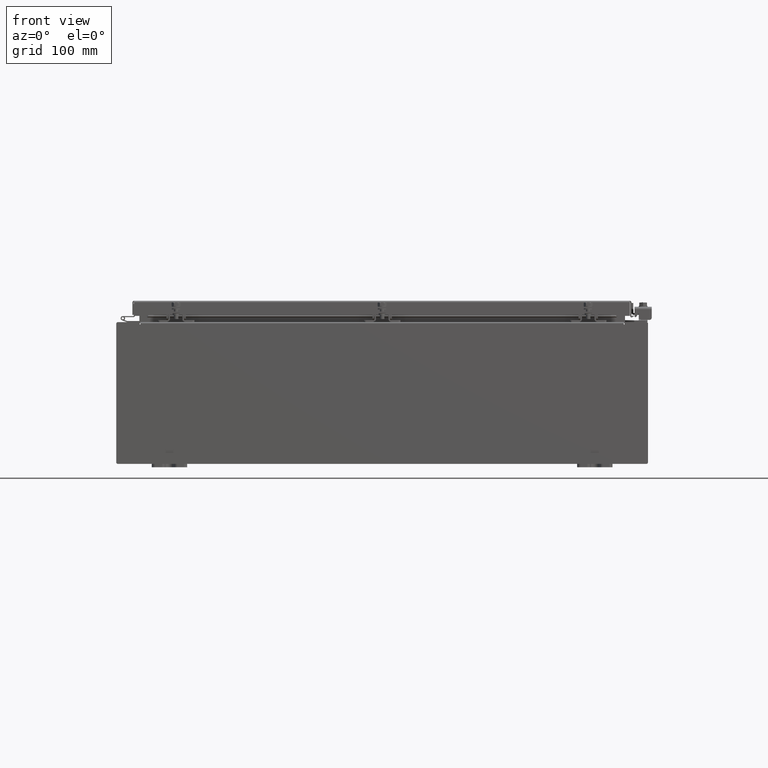
[diagram: clean part render]
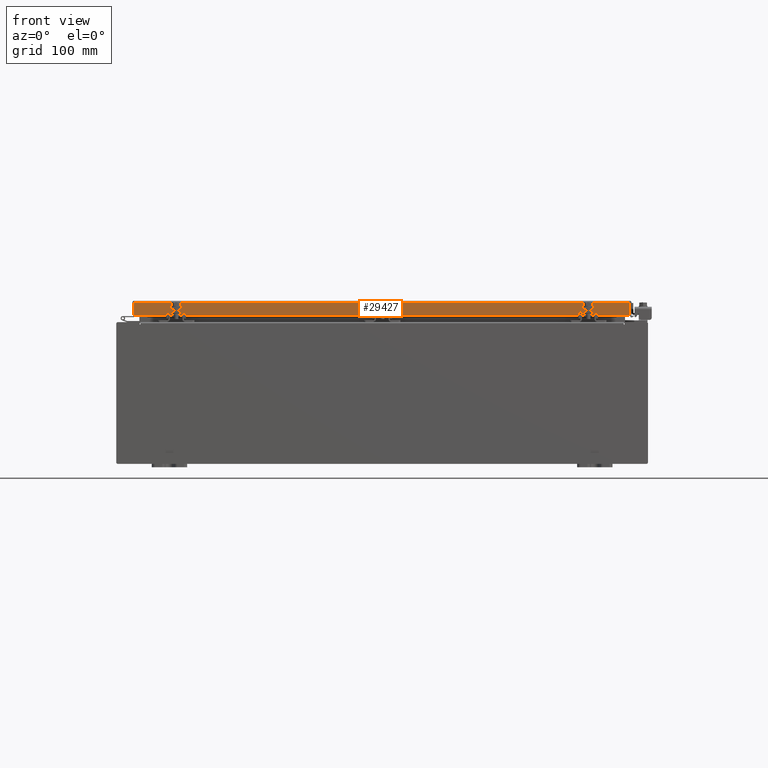
[diagram: same view with one face highlighted and labeled with its STEP entity id]
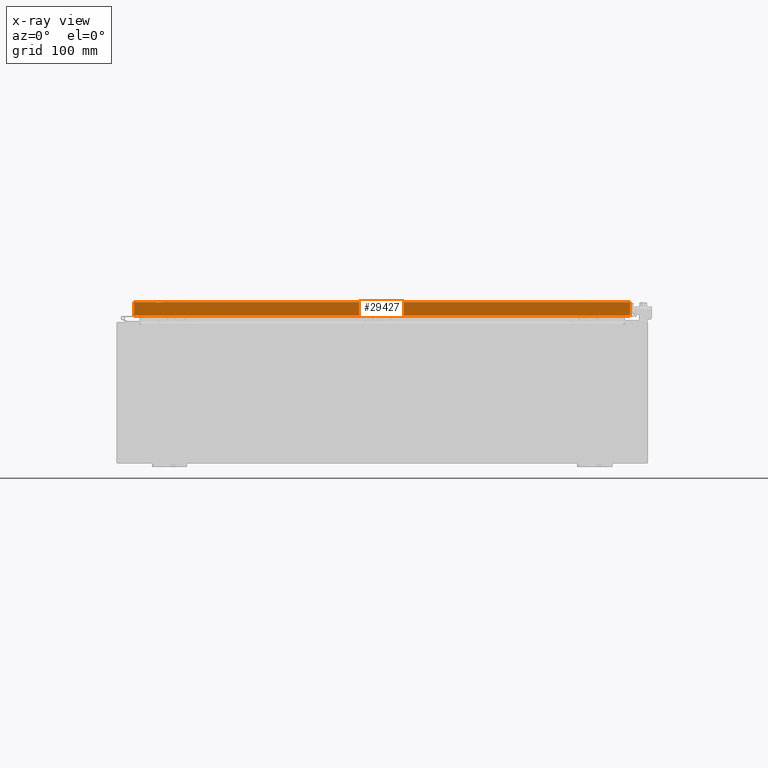
[diagram: x-ray of the same camera — body ghosted, the highlighted face saturated]
A machine part, front view. The second image highlights one B-rep face of the part: STEP entity #29427.
The next image is the same camera in x-ray: the body ghosted, the highlighted face saturated — about 0% of this face is hidden behind the body in this view.
In plain terms, the highlighted planar face has unit normal (-0, 1, -0).
Its self-contained STEP definition (entity closure, byte-faithful):
#115 = VERTEX_POINT ( 'NONE', #4025 ) ;
#877 = VECTOR ( 'NONE', #16307, 39.37007874015748100 ) ;
#1642 = CARTESIAN_POINT ( 'NONE',  ( -13.98915786437626900, -11.09400000000000100, -0.08770000000000245700 ) ) ;
#3450 = CARTESIAN_POINT ( 'NONE',  ( 14.07800000000000300, -11.09400000000000700, -0.8499999999999999800 ) ) ;
#3848 = DIRECTION ( 'NONE',  ( 0.0000000000000000000, -5.637761885544720300E-015, -1.000000000000000000 ) ) ;
#4025 = CARTESIAN_POINT ( 'NONE',  ( 13.98915786437627100, -11.09400000000000700, -0.8499999999999999800 ) ) ;
#4979 = VERTEX_POINT ( 'NONE', #17654 ) ;
#5678 = LINE ( 'NONE', #29230, #18480 ) ;
#6404 = CARTESIAN_POINT ( 'NONE',  ( 8.601052667552329200E-016, -11.09400000000000100, 6.228613425554519900E-014 ) ) ;
#6738 = VECTOR ( 'NONE', #24210, 39.37007874015748100 ) ;
#6746 = FACE_OUTER_BOUND ( 'NONE', #20166, .T. ) ;
#7630 = LINE ( 'NONE', #11770, #13633 ) ;
#8609 = ORIENTED_EDGE ( 'NONE', *, *, #20952, .F. ) ;
#8992 = DIRECTION ( 'NONE',  ( 0.0000000000000000000, 5.637761885544720300E-015, 1.000000000000000000 ) ) ;
#9230 = VERTEX_POINT ( 'NONE', #12831 ) ;
#10188 = VERTEX_POINT ( 'NONE', #31890 ) ;
#11028 = EDGE_CURVE ( 'NONE', #115, #4979, #21280, .T. ) ;
#11770 = CARTESIAN_POINT ( 'NONE',  ( 14.07800000000000300, -11.09400000000000100, -0.08770000000000026400 ) ) ;
#12639 = VERTEX_POINT ( 'NONE', #1642 ) ;
#12831 = CARTESIAN_POINT ( 'NONE',  ( -13.23915786437626900, -11.09400000000000300, -0.8499999999999999800 ) ) ;
#12893 = CARTESIAN_POINT ( 'NONE',  ( 13.23915786437626900, -11.09400000000000300, -0.8499999999999999800 ) ) ;
#13530 = DIRECTION ( 'NONE',  ( -0.0000000000000000000, -5.637761885544720300E-015, -1.000000000000000000 ) ) ;
#13633 = VECTOR ( 'NONE', #22049, 39.37007874015748100 ) ;
#13795 = LINE ( 'NONE', #28755, #27366 ) ;
#14100 = ORIENTED_EDGE ( 'NONE', *, *, #18325, .F. ) ;
#15425 = EDGE_CURVE ( 'NONE', #12639, #22974, #7630, .T. ) ;
#16307 = DIRECTION ( 'NONE',  ( -1.000000000000000000, -7.762034361881697200E-017, 1.212817869044015300E-016 ) ) ;
#16932 = LINE ( 'NONE', #12893, #23676 ) ;
#17654 = CARTESIAN_POINT ( 'NONE',  ( 13.23915786437626900, -11.09400000000000300, -0.8499999999999999800 ) ) ;
#18325 = EDGE_CURVE ( 'NONE', #9230, #10188, #21972, .T. ) ;
#18480 = VECTOR ( 'NONE', #3848, 39.37007874015748100 ) ;
#18492 = AXIS2_PLACEMENT_3D ( 'NONE', #6404, #24289, #8992 ) ;
#20166 = EDGE_LOOP ( 'NONE', ( #23692, #28490, #14100, #24953, #28846, #8609 ) ) ;
#20952 = EDGE_CURVE ( 'NONE', #22974, #115, #13795, .T. ) ;
#21280 = LINE ( 'NONE', #3450, #877 ) ;
#21747 = PLANE ( 'NONE',  #18492 ) ;
#21793 = CARTESIAN_POINT ( 'NONE',  ( 14.07800000000000300, -11.09400000000000700, -0.8499999999999999800 ) ) ;
#21972 = LINE ( 'NONE', #21793, #6738 ) ;
#22049 = DIRECTION ( 'NONE',  ( 1.000000000000000000, 7.762034361881809300E-017, 7.762034361881697200E-017 ) ) ;
#22974 = VERTEX_POINT ( 'NONE', #32796 ) ;
#23081 = EDGE_CURVE ( 'NONE', #4979, #9230, #16932, .T. ) ;
#23451 = EDGE_CURVE ( 'NONE', #12639, #10188, #5678, .T. ) ;
#23676 = VECTOR ( 'NONE', #30703, 39.37007874015748100 ) ;
#23692 = ORIENTED_EDGE ( 'NONE', *, *, #15425, .F. ) ;
#24210 = DIRECTION ( 'NONE',  ( -1.000000000000000000, -7.762034361881697200E-017, 1.212817869044015300E-016 ) ) ;
#24289 = DIRECTION ( 'NONE',  ( -7.762034361881765000E-017, 1.000000000000000000, -5.637761885544720300E-015 ) ) ;
#24953 = ORIENTED_EDGE ( 'NONE', *, *, #23081, .F. ) ;
#27366 = VECTOR ( 'NONE', #13530, 39.37007874015748100 ) ;
#28490 = ORIENTED_EDGE ( 'NONE', *, *, #23451, .T. ) ;
#28755 = CARTESIAN_POINT ( 'NONE',  ( 13.98915786437627100, -11.09400000000000100, -0.07469999999999907300 ) ) ;
#28846 = ORIENTED_EDGE ( 'NONE', *, *, #11028, .F. ) ;
#29230 = CARTESIAN_POINT ( 'NONE',  ( -13.98915786437626700, -11.09400000000000100, 6.228613425554519900E-014 ) ) ;
#29427 = ADVANCED_FACE ( 'NONE', ( #6746 ), #21747, .F. ) ;
#30703 = DIRECTION ( 'NONE',  ( -1.000000000000000000, 0.0000000000000000000, 0.0000000000000000000 ) ) ;
#31890 = CARTESIAN_POINT ( 'NONE',  ( -13.98915786437626900, -11.09400000000000700, -0.8499999999999966500 ) ) ;
#32796 = CARTESIAN_POINT ( 'NONE',  ( 13.98915786437624000, -11.09400000000000100, -0.08770000000000136000 ) ) ;